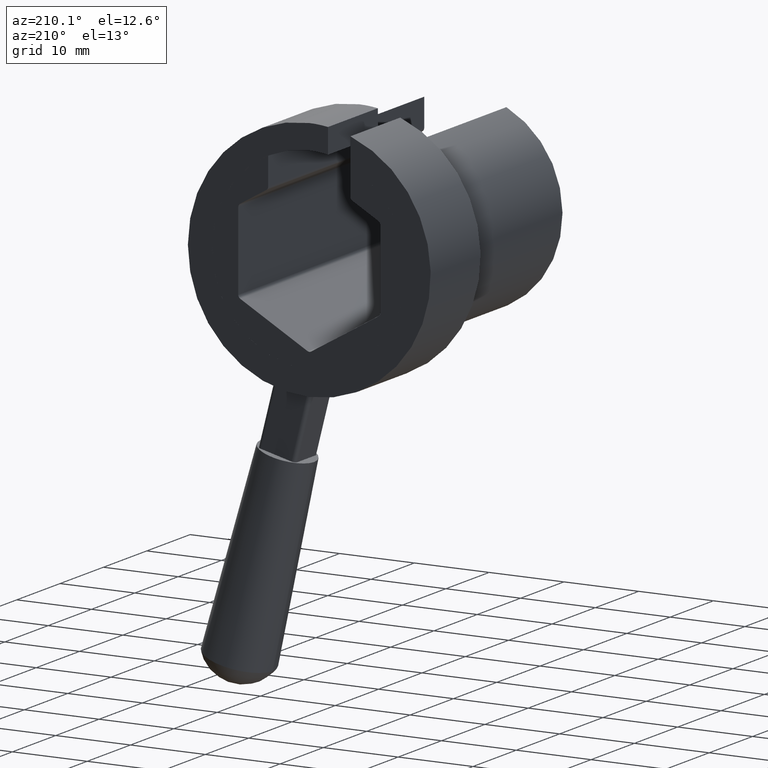
[diagram: clean part render]
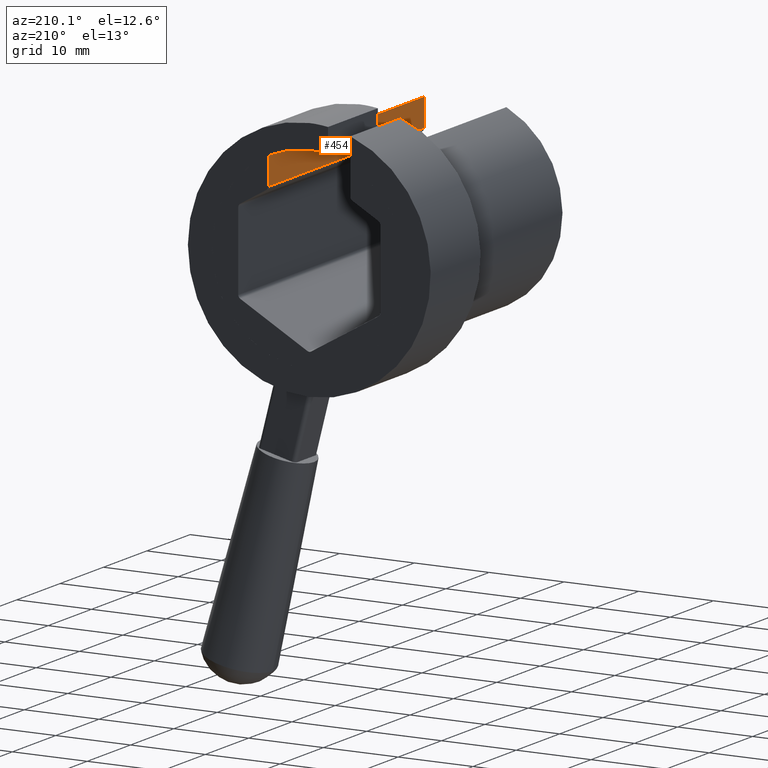
[diagram: same view with one face highlighted and labeled with its STEP entity id]
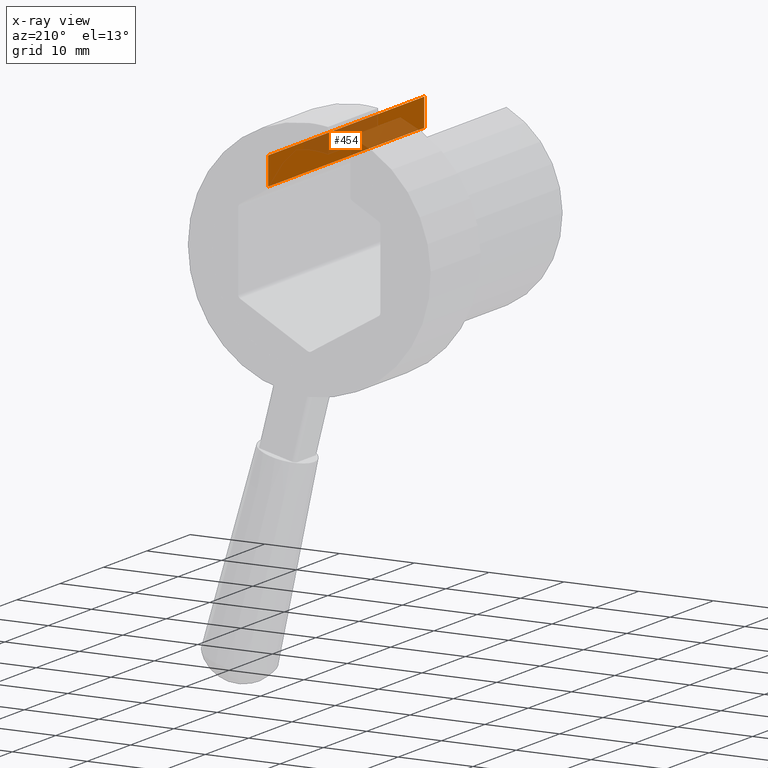
[diagram: x-ray of the same camera — body ghosted, the highlighted face saturated]
A machine part, auxiliary view. The second image highlights one B-rep face of the part: STEP entity #454.
The next image is the same camera in x-ray: the body ghosted, the highlighted face saturated — about 47% of this face is hidden behind the body in this view.
In plain terms, the highlighted planar face has unit normal (1, 0, -0).
Its self-contained STEP definition (entity closure, byte-faithful):
#280 = ORIENTED_EDGE ( 'NONE', *, *, #406, .F. ) ;
#283 = VERTEX_POINT ( 'NONE', #1189 ) ;
#286 = ORIENTED_EDGE ( 'NONE', *, *, #287, .T. ) ;
#287 = EDGE_CURVE ( 'NONE', #358, #288, #1182, .T. ) ;
#288 = VERTEX_POINT ( 'NONE', #1178 ) ;
#289 = ORIENTED_EDGE ( 'NONE', *, *, #290, .T. ) ;
#290 = EDGE_CURVE ( 'NONE', #288, #407, #1177, .T. ) ;
#356 = ORIENTED_EDGE ( 'NONE', *, *, #357, .F. ) ;
#357 = EDGE_CURVE ( 'NONE', #358, #283, #858, .T. ) ;
#358 = VERTEX_POINT ( 'NONE', #1006 ) ;
#406 = EDGE_CURVE ( 'NONE', #283, #407, #962, .T. ) ;
#407 = VERTEX_POINT ( 'NONE', #958 ) ;
#454 = ADVANCED_FACE ( 'NONE', ( #1030 ), #1029, .F. ) ;
#455 = EDGE_LOOP ( 'NONE', ( #356, #286, #289, #280 ) ) ;
#855 = DIRECTION ( 'NONE',  ( 2.150526855557627100E-016, 0.0000000000000000000, 1.000000000000000000 ) ) ;
#856 = VECTOR ( 'NONE', #855, 1000.000000000000000 ) ;
#857 = CARTESIAN_POINT ( 'NONE',  ( 5.500000000000000000, 36.00000000000000000, 7.745966692414834000 ) ) ;
#858 = LINE ( 'NONE', #857, #856 ) ;
#958 = CARTESIAN_POINT ( 'NONE',  ( 5.500000000000000900, 0.0000000000000000000, 11.77921898938974700 ) ) ;
#959 = DIRECTION ( 'NONE',  ( 0.0000000000000000000, -1.000000000000000000, 0.0000000000000000000 ) ) ;
#960 = VECTOR ( 'NONE', #959, 1000.000000000000000 ) ;
#961 = CARTESIAN_POINT ( 'NONE',  ( 5.500000000000000900, 36.00000000000000000, 11.77921898938974700 ) ) ;
#962 = LINE ( 'NONE', #961, #960 ) ;
#1006 = CARTESIAN_POINT ( 'NONE',  ( 5.500000000000000000, 36.00000000000000000, 8.082903768654762900 ) ) ;
#1025 = DIRECTION ( 'NONE',  ( -2.150526855557626900E-016, 0.0000000000000000000, -1.000000000000000000 ) ) ;
#1026 = DIRECTION ( 'NONE',  ( 1.000000000000000000, 0.0000000000000000000, -2.150526855557626900E-016 ) ) ;
#1027 = CARTESIAN_POINT ( 'NONE',  ( 5.500000000000000000, 36.00000000000000000, 7.745966692414834000 ) ) ;
#1028 = AXIS2_PLACEMENT_3D ( 'NONE', #1027, #1026, #1025 ) ;
#1029 = PLANE ( 'NONE',  #1028 ) ;
#1030 = FACE_OUTER_BOUND ( 'NONE', #455, .T. ) ;
#1174 = DIRECTION ( 'NONE',  ( 2.150526855557627100E-016, 0.0000000000000000000, 1.000000000000000000 ) ) ;
#1175 = VECTOR ( 'NONE', #1174, 1000.000000000000000 ) ;
#1176 = CARTESIAN_POINT ( 'NONE',  ( 5.500000000000000000, 0.0000000000000000000, 7.745966692414834000 ) ) ;
#1177 = LINE ( 'NONE', #1176, #1175 ) ;
#1178 = CARTESIAN_POINT ( 'NONE',  ( 5.500000000000000000, 0.0000000000000000000, 8.082903768654762900 ) ) ;
#1179 = DIRECTION ( 'NONE',  ( 0.0000000000000000000, -1.000000000000000000, 0.0000000000000000000 ) ) ;
#1180 = VECTOR ( 'NONE', #1179, 1000.000000000000000 ) ;
#1181 = CARTESIAN_POINT ( 'NONE',  ( 5.500000000000000000, 36.00000000000000000, 8.082903768654762900 ) ) ;
#1182 = LINE ( 'NONE', #1181, #1180 ) ;
#1189 = CARTESIAN_POINT ( 'NONE',  ( 5.500000000000000900, 36.00000000000000000, 11.77921898938974700 ) ) ;